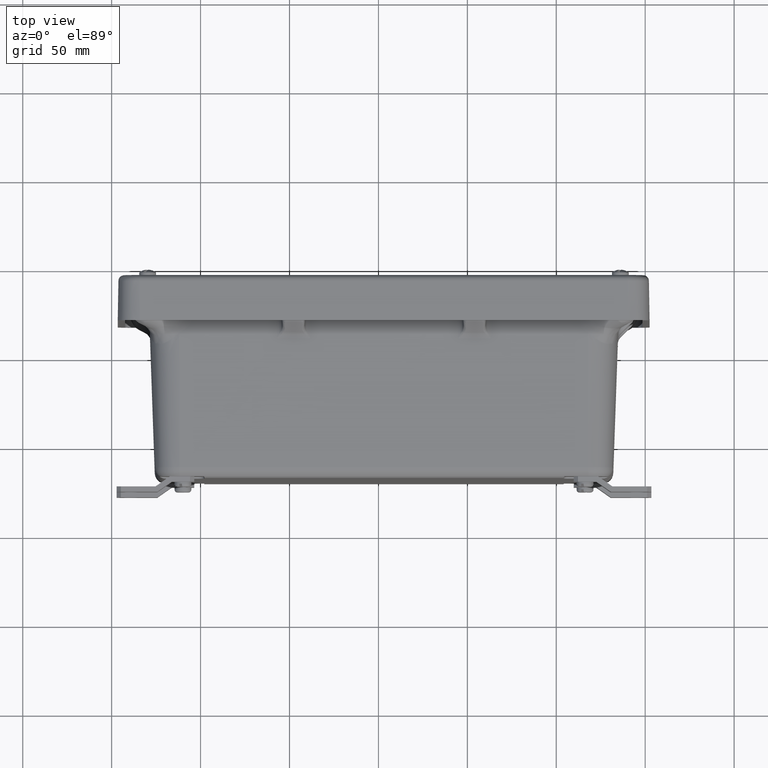
[diagram: clean part render]
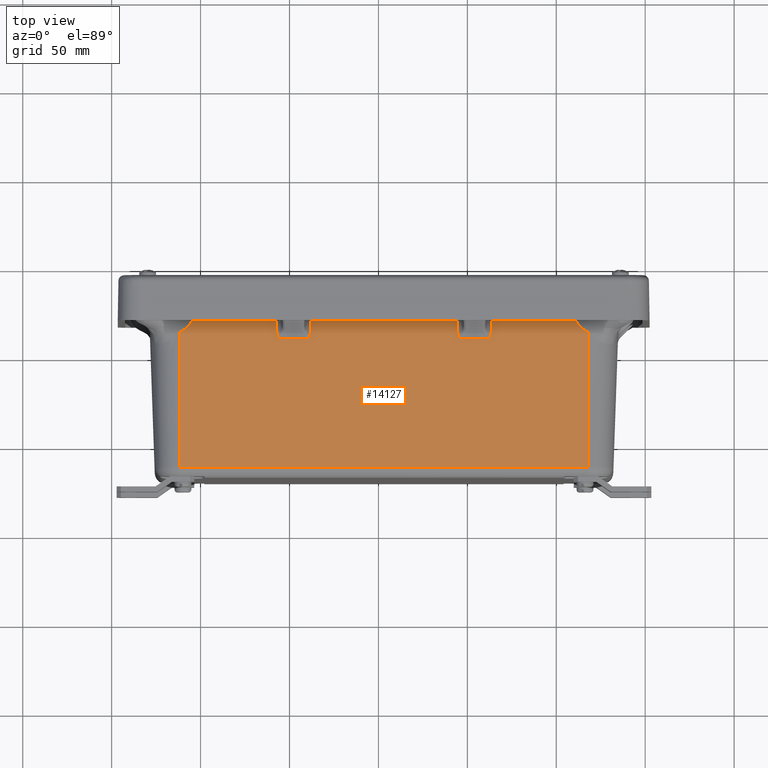
[diagram: same view with one face highlighted and labeled with its STEP entity id]
A machine part, top view. The second image highlights one B-rep face of the part: STEP entity #14127.
In plain terms, the highlighted planar face has unit normal (0, -0.0349, 0.9994).
Its self-contained STEP definition (entity closure, byte-faithful):
#263 = EDGE_CURVE ( 'NONE', #20624, #32099, #40654, .T. ) ;
#530 = CARTESIAN_POINT ( 'NONE',  ( -4.222974375651413800, -0.6085165410259083500, 4.251577107824135600 ) ) ;
#559 = CARTESIAN_POINT ( 'NONE',  ( 4.221400602685365700, -0.4886244273954343800, 4.255763832688103300 ) ) ;
#562 = DIRECTION ( 'NONE',  ( -1.000000000000000000, -0.0000000000000000000, -0.0000000000000000000 ) ) ;
#1034 = CARTESIAN_POINT ( 'NONE',  ( -4.522359172583527700, -0.4886244273954343800, 4.255763832688103300 ) ) ;
#2691 = ORIENTED_EDGE ( 'NONE', *, *, #24100, .T. ) ;
#2727 = CARTESIAN_POINT ( 'NONE',  ( 4.241013602217791800, -0.6395734347953414600, 4.250492577195681900 ) ) ;
#3392 = ORIENTED_EDGE ( 'NONE', *, *, #41718, .T. ) ;
#3528 = CARTESIAN_POINT ( 'NONE',  ( -4.522359172583527700, -0.4886244273954343800, 4.255763832688103300 ) ) ;
#3560 = B_SPLINE_CURVE_WITH_KNOTS ( 'NONE', 3,
 ( #530, #19775, #16547, #22988, #3789, #26234, #7015, #29437, #10247, #32649 ),
 .UNSPECIFIED., .F., .F.,
 ( 4, 2, 2, 2, 4 ),
 ( -2.764299500855479500E-005, 0.002713812224914043900, 0.004084539834875342300, 0.005455267444836641200, 0.01093817788468190100 ),
 .UNSPECIFIED. ) ;
#3576 = CARTESIAN_POINT ( 'NONE',  ( 4.213878353605024600, 0.1125231730596599100, 4.276756369474113300 ) ) ;
#3789 = CARTESIAN_POINT ( 'NONE',  ( -4.301810448729198400, -0.7286885076968471200, 4.247380610276649400 ) ) ;
#4000 = B_SPLINE_CURVE_WITH_KNOTS ( 'NONE', 3,
 ( #28260, #41087, #31475, #12272, #34684, #15485, #37950, #18733, #41234, #21919, #2727, #25166, #5941, #28410, #9178, #31610 ),
 .UNSPECIFIED., .F., .F.,
 ( 4, 2, 2, 2, 2, 2, 2, 4 ),
 ( 3.469446951953613800E-018, 0.005386341479634218000, 0.006732926849542761800, 0.008079512219451304800, 0.009426097589359848700, 0.01009939027431412200, 0.01043603661679127200, 0.01077268295926842200 ),
 .UNSPECIFIED. ) ;
#4094 = VERTEX_POINT ( 'NONE', #32437 ) ;
#4907 = LINE ( 'NONE', #3576, #20989 ) ;
#5653 = LINE ( 'NONE', #32744, #38815 ) ;
#5941 = CARTESIAN_POINT ( 'NONE',  ( 4.231863556963209500, -0.6240907675929758800, 4.251033243848175900 ) ) ;
#7015 = CARTESIAN_POINT ( 'NONE',  ( -4.337197390515994400, -0.7694270451427995800, 4.245957989201069300 ) ) ;
#7140 = EDGE_CURVE ( 'NONE', #21510, #7730, #13630, .T. ) ;
#7265 = CARTESIAN_POINT ( 'NONE',  ( -2.385870610584364100, -0.4886244273954343800, 4.255763832688103300 ) ) ;
#7346 = LINE ( 'NONE', #13672, #24415 ) ;
#7601 = EDGE_LOOP ( 'NONE', ( #26415, #16598, #36371, #36719, #28175, #23064, #13329, #16685, #2691, #33125, #3392, #21089, #41680, #11399, #25611, #11260 ) ) ;
#7730 = VERTEX_POINT ( 'NONE', #29962 ) ;
#7785 = FACE_OUTER_BOUND ( 'NONE', #7601, .T. ) ;
#7928 = LINE ( 'NONE', #24760, #16474 ) ;
#8159 = LINE ( 'NONE', #12672, #33730 ) ;
#8491 = CARTESIAN_POINT ( 'NONE',  ( -4.221474147852425100, -0.4886244273954343800, 4.255763832688103300 ) ) ;
#8867 = CARTESIAN_POINT ( 'NONE',  ( 1.639089420148724700, -1.043023171033192500, 4.236403801955015400 ) ) ;
#9178 = CARTESIAN_POINT ( 'NONE',  ( 4.225084588554449500, -0.6123546852062526900, 4.251443076875937700 ) ) ;
#9907 = EDGE_CURVE ( 'NONE', #28757, #4094, #7928, .T. ) ;
#9963 = VERTEX_POINT ( 'NONE', #18743 ) ;
#10247 = CARTESIAN_POINT ( 'NONE',  ( -4.458903790833833400, -0.8720474958907554800, 4.242374404095361500 ) ) ;
#11260 = ORIENTED_EDGE ( 'NONE', *, *, #27739, .T. ) ;
#11397 = EDGE_CURVE ( 'NONE', #25781, #21510, #4907, .T. ) ;
#11399 = ORIENTED_EDGE ( 'NONE', *, *, #12321, .T. ) ;
#11894 = DIRECTION ( 'NONE',  ( -0.03487826274237460600, 0.9987827659587182900, 0.03487826274237465500 ) ) ;
#12100 = CARTESIAN_POINT ( 'NONE',  ( -1.638866264247526900, -1.034526764093332000, 4.236700503023270100 ) ) ;
#12272 = CARTESIAN_POINT ( 'NONE',  ( 4.337116569111085300, -0.7694194242225295100, 4.245958255329469500 ) ) ;
#12321 = EDGE_CURVE ( 'NONE', #32758, #32099, #3560, .T. ) ;
#12664 = EDGE_CURVE ( 'NONE', #30575, #9963, #23927, .T. ) ;
#12672 = CARTESIAN_POINT ( 'NONE',  ( 2.394552164643476600, -0.2379111884377651500, 4.264518931914274400 ) ) ;
#12745 = CARTESIAN_POINT ( 'NONE',  ( 4.222900830484354300, -0.6085165410259082400, 4.251577107824135600 ) ) ;
#12770 = CARTESIAN_POINT ( 'NONE',  ( -4.222974375651413800, -0.6085165410259083500, 4.251577107824135600 ) ) ;
#12790 = CARTESIAN_POINT ( 'NONE',  ( -1.606175050146831500, -0.09837287697980073900, 4.269391717123966100 ) ) ;
#13329 = ORIENTED_EDGE ( 'NONE', *, *, #12664, .T. ) ;
#13548 = DIRECTION ( 'NONE',  ( 0.0000000000000000000, 0.9993908270190957600, 0.03489949670250101100 ) ) ;
#13629 = AXIS2_PLACEMENT_3D ( 'NONE', #37638, #18554, #41058 ) ;
#13630 = LINE ( 'NONE', #3528, #37204 ) ;
#13672 = CARTESIAN_POINT ( 'NONE',  ( -4.522359172583527700, -0.4886244273954343800, 4.255763832688103300 ) ) ;
#14127 = ADVANCED_FACE ( 'NONE', ( #7785 ), #18018, .T. ) ;
#15001 = VECTOR ( 'NONE', #13548, 39.37007874015748900 ) ;
#15485 = CARTESIAN_POINT ( 'NONE',  ( 4.301728781754778000, -0.7286783233867988300, 4.247380965920594800 ) ) ;
#16474 = VECTOR ( 'NONE', #27723, 39.37007874015748100 ) ;
#16497 = LINE ( 'NONE', #1034, #24020 ) ;
#16547 = CARTESIAN_POINT ( 'NONE',  ( -4.259517735258297600, -0.6705557408840370200, 4.249410651226438200 ) ) ;
#16598 = ORIENTED_EDGE ( 'NONE', *, *, #17998, .T. ) ;
#16685 = ORIENTED_EDGE ( 'NONE', *, *, #36159, .T. ) ;
#17383 = LINE ( 'NONE', #12790, #22875 ) ;
#17965 = VERTEX_POINT ( 'NONE', #27576 ) ;
#17998 = EDGE_CURVE ( 'NONE', #17965, #25781, #4000, .T. ) ;
#18018 = PLANE ( 'NONE',  #13629 ) ;
#18204 = VERTEX_POINT ( 'NONE', #36101 ) ;
#18554 = DIRECTION ( 'NONE',  ( 0.0000000000000000000, -0.03489949670250101100, 0.9993908270190957600 ) ) ;
#18733 = CARTESIAN_POINT ( 'NONE',  ( 4.269878229222809900, -0.6851766600626622000, 4.248900077478043400 ) ) ;
#18743 = CARTESIAN_POINT ( 'NONE',  ( 1.619729389415635500, -0.4886244273954343800, 4.255763832688103300 ) ) ;
#19775 = CARTESIAN_POINT ( 'NONE',  ( -4.240757652058562100, -0.6397721914539816800, 4.250485636460223500 ) ) ;
#19995 = DIRECTION ( 'NONE',  ( 0.0000000000000000000, 0.9993908270190957600, 0.03489949670250101100 ) ) ;
#20234 = DIRECTION ( 'NONE',  ( -1.000000000000000000, -0.0000000000000000000, -0.0000000000000000000 ) ) ;
#20624 = VERTEX_POINT ( 'NONE', #28083 ) ;
#20989 = VECTOR ( 'NONE', #26027, 39.37007874015748900 ) ;
#21089 = ORIENTED_EDGE ( 'NONE', *, *, #23780, .T. ) ;
#21510 = VERTEX_POINT ( 'NONE', #559 ) ;
#21844 = CARTESIAN_POINT ( 'NONE',  ( -2.405628458814018000, 0.07716631883431782100, 4.275521680917757200 ) ) ;
#21919 = CARTESIAN_POINT ( 'NONE',  ( 4.245676082047570100, -0.6472609344621963500, 4.250224123791848100 ) ) ;
#22018 = VERTEX_POINT ( 'NONE', #7265 ) ;
#22235 = VECTOR ( 'NONE', #29865, 39.37007874015748100 ) ;
#22875 = VECTOR ( 'NONE', #31978, 39.37007874015748100 ) ;
#22988 = CARTESIAN_POINT ( 'NONE',  ( -4.290845980981779400, -0.7144569427357523300, 4.247877587476162700 ) ) ;
#23042 = EDGE_CURVE ( 'NONE', #31543, #32758, #30964, .T. ) ;
#23064 = ORIENTED_EDGE ( 'NONE', *, *, #26862, .T. ) ;
#23713 = CARTESIAN_POINT ( 'NONE',  ( -4.215366153061324000, -0.0004982867895716764000, 4.272809573127097400 ) ) ;
#23780 = EDGE_CURVE ( 'NONE', #22018, #31543, #7346, .T. ) ;
#23927 = LINE ( 'NONE', #31104, #25945 ) ;
#24020 = VECTOR ( 'NONE', #26727, 39.37007874015748100 ) ;
#24100 = EDGE_CURVE ( 'NONE', #28555, #28757, #17383, .T. ) ;
#24415 = VECTOR ( 'NONE', #20234, 39.37007874015748100 ) ;
#24760 = CARTESIAN_POINT ( 'NONE',  ( -4.522359172583527700, -1.034526764093331800, 4.236700503023270100 ) ) ;
#25122 = LINE ( 'NONE', #21844, #32636 ) ;
#25166 = CARTESIAN_POINT ( 'NONE',  ( 4.234136467296854000, -0.6279704219689316000, 4.250897763332004900 ) ) ;
#25611 = ORIENTED_EDGE ( 'NONE', *, *, #263, .F. ) ;
#25638 = DIRECTION ( 'NONE',  ( -1.000000000000000000, 0.0000000000000000000, 0.0000000000000000000 ) ) ;
#25781 = VERTEX_POINT ( 'NONE', #12745 ) ;
#25945 = VECTOR ( 'NONE', #11894, 39.37007874015748100 ) ;
#26027 = DIRECTION ( 'NONE',  ( -0.01250454789409256500, 0.9993126897317753400, 0.03489676808830177700 ) ) ;
#26234 = CARTESIAN_POINT ( 'NONE',  ( -4.324992087904995200, -0.7561859867485386500, 4.246420377149081400 ) ) ;
#26415 = ORIENTED_EDGE ( 'NONE', *, *, #32151, .T. ) ;
#26727 = DIRECTION ( 'NONE',  ( -1.000000000000000000, -0.0000000000000000000, -0.0000000000000000000 ) ) ;
#26862 = EDGE_CURVE ( 'NONE', #37617, #30575, #36300, .T. ) ;
#27576 = CARTESIAN_POINT ( 'NONE',  ( 4.522285627416471800, -0.9053705607391384600, 4.241210737029031300 ) ) ;
#27723 = DIRECTION ( 'NONE',  ( -1.000000000000000000, -0.0000000000000000000, -0.0000000000000000000 ) ) ;
#27739 = EDGE_CURVE ( 'NONE', #20624, #18204, #39348, .T. ) ;
#27764 = VECTOR ( 'NONE', #25638, 39.37007874015748100 ) ;
#28083 = CARTESIAN_POINT ( 'NONE',  ( -4.522359172583527700, -3.885823605394376700, 4.137131023275647300 ) ) ;
#28175 = ORIENTED_EDGE ( 'NONE', *, *, #32423, .T. ) ;
#28260 = CARTESIAN_POINT ( 'NONE',  ( 4.522285627416471800, -0.9053705607391384600, 4.241210737029031300 ) ) ;
#28410 = CARTESIAN_POINT ( 'NONE',  ( 4.227352284778238100, -0.6163101926597159800, 4.251304947511931300 ) ) ;
#28555 = VERTEX_POINT ( 'NONE', #33129 ) ;
#28757 = VERTEX_POINT ( 'NONE', #12100 ) ;
#28876 = CARTESIAN_POINT ( 'NONE',  ( -4.522359172583527700, -1.043023171033192800, 4.236403801955015400 ) ) ;
#28997 = CARTESIAN_POINT ( 'NONE',  ( -4.522359172583527700, -0.9053705607391392400, 4.241210737029030400 ) ) ;
#29437 = CARTESIAN_POINT ( 'NONE',  ( -4.400455852237739100, -0.8321541747892816600, 4.243767509565803800 ) ) ;
#29865 = DIRECTION ( 'NONE',  ( 1.000000000000000000, 0.0000000000000000000, 0.0000000000000000000 ) ) ;
#29962 = CARTESIAN_POINT ( 'NONE',  ( 2.385797065417306900, -0.4886244273954343800, 4.255763832688103300 ) ) ;
#30575 = VERTEX_POINT ( 'NONE', #8867 ) ;
#30964 = LINE ( 'NONE', #23713, #38515 ) ;
#31104 = CARTESIAN_POINT ( 'NONE',  ( 1.595098755976291700, 0.2167046302922814600, 4.280394466127448000 ) ) ;
#31475 = CARTESIAN_POINT ( 'NONE',  ( 4.400377016622203800, -0.8321505514192203400, 4.243767636096675000 ) ) ;
#31543 = VERTEX_POINT ( 'NONE', #8491 ) ;
#31610 = CARTESIAN_POINT ( 'NONE',  ( 4.222900830484354300, -0.6085165410259082400, 4.251577107824135600 ) ) ;
#31978 = DIRECTION ( 'NONE',  ( -0.03487826274237460600, -0.9987827659587182900, -0.03487826274237465500 ) ) ;
#32099 = VERTEX_POINT ( 'NONE', #28997 ) ;
#32151 = EDGE_CURVE ( 'NONE', #18204, #17965, #5653, .T. ) ;
#32423 = EDGE_CURVE ( 'NONE', #7730, #37617, #8159, .T. ) ;
#32437 = CARTESIAN_POINT ( 'NONE',  ( -2.366807280919530400, -1.034526764093331800, 4.236700503023270100 ) ) ;
#32636 = VECTOR ( 'NONE', #34744, 39.37007874015748100 ) ;
#32649 = CARTESIAN_POINT ( 'NONE',  ( -4.522359172583527700, -0.9053705607391392400, 4.241210737029030400 ) ) ;
#32729 = CARTESIAN_POINT ( 'NONE',  ( -4.522359172583527700, 0.003338483605094448700, 4.272943556101641800 ) ) ;
#32744 = CARTESIAN_POINT ( 'NONE',  ( 4.522285627416471800, 0.003338483605094448700, 4.272943556101642700 ) ) ;
#32758 = VERTEX_POINT ( 'NONE', #12770 ) ;
#32947 = CARTESIAN_POINT ( 'NONE',  ( -4.522359172583527700, -3.885823605394376700, 4.137131023275648200 ) ) ;
#33125 = ORIENTED_EDGE ( 'NONE', *, *, #9907, .T. ) ;
#33129 = CARTESIAN_POINT ( 'NONE',  ( -1.619802934582692800, -0.4886244273954343800, 4.255763832688103300 ) ) ;
#33730 = VECTOR ( 'NONE', #34252, 39.37007874015748100 ) ;
#34126 = CARTESIAN_POINT ( 'NONE',  ( 2.366437034684217600, -1.043023171033192500, 4.236403801955015400 ) ) ;
#34252 = DIRECTION ( 'NONE',  ( -0.03487826274237469700, -0.9987827659587182900, -0.03487826274237465500 ) ) ;
#34684 = CARTESIAN_POINT ( 'NONE',  ( 4.324910908992267300, -0.7561774818426808500, 4.246420674146937900 ) ) ;
#34744 = DIRECTION ( 'NONE',  ( -0.03487826274237469700, 0.9987827659587182900, 0.03487826274237465500 ) ) ;
#36101 = CARTESIAN_POINT ( 'NONE',  ( 4.522285627416471800, -3.885823605394376700, 4.137131023275648200 ) ) ;
#36159 = EDGE_CURVE ( 'NONE', #9963, #28555, #16497, .T. ) ;
#36300 = LINE ( 'NONE', #28876, #27764 ) ;
#36371 = ORIENTED_EDGE ( 'NONE', *, *, #11397, .T. ) ;
#36719 = ORIENTED_EDGE ( 'NONE', *, *, #7140, .T. ) ;
#37204 = VECTOR ( 'NONE', #562, 39.37007874015748100 ) ;
#37617 = VERTEX_POINT ( 'NONE', #34126 ) ;
#37638 = CARTESIAN_POINT ( 'NONE',  ( -4.522359172583527700, 0.003338483605094448700, 4.272943556101642700 ) ) ;
#37950 = CARTESIAN_POINT ( 'NONE',  ( 4.290764111322949300, -0.7144458868514698100, 4.247877973556149400 ) ) ;
#38515 = VECTOR ( 'NONE', #39758, 39.37007874015748900 ) ;
#38815 = VECTOR ( 'NONE', #19995, 39.37007874015748900 ) ;
#39348 = LINE ( 'NONE', #32947, #22235 ) ;
#39758 = DIRECTION ( 'NONE',  ( -0.01250454789409266200, -0.9993126897317753400, -0.03489676808830177700 ) ) ;
#40654 = LINE ( 'NONE', #32729, #15001 ) ;
#41058 = DIRECTION ( 'NONE',  ( 0.0000000000000000000, -0.9993908270190957600, -0.03489949670250101100 ) ) ;
#41087 = CARTESIAN_POINT ( 'NONE',  ( 4.458827370441458300, -0.8720459859901443800, 4.242374456822251900 ) ) ;
#41234 = CARTESIAN_POINT ( 'NONE',  ( 4.259955474174768500, -0.6701437231737673600, 4.249425039201924800 ) ) ;
#41680 = ORIENTED_EDGE ( 'NONE', *, *, #23042, .T. ) ;
#41718 = EDGE_CURVE ( 'NONE', #4094, #22018, #25122, .T. ) ;